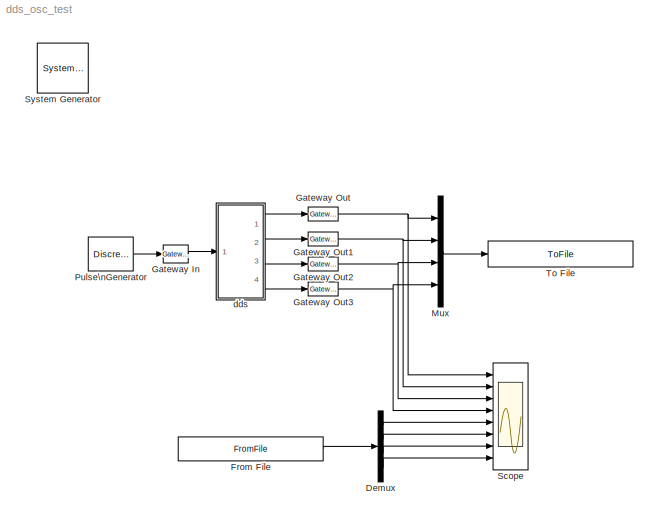
MODEL dds_osc_test
KIND model
BLOCK [Reference]  System Generator  REF=xbsIndex_r4/ System Generator
  AttributesFormatString = System\\nGenerator
  FunctionWithSeparateData = off
  Ports = []
  RTWMemSecDataConstants = Inherit from model
  RTWMemSecDataInternal = Inherit from model
  RTWMemSecDataParameters = Inherit from model
  RTWMemSecFuncExecute = Inherit from model
  RTWMemSecFuncInitTerm = Inherit from model
  ShowPortLabels = FromPortIcon
  SourceBlock = xbsIndex_r4/ System Generator
  SourceType = Xilinx System Generator Block
  SystemSampleTime = -1
  Tag = genX
  UserData = DataTag0
  UserDataPersistent = on
  block_type = sysgen
  block_version = 10.1.1
  clock_wrapper = Clock Enables
  core_generation = According to Block Masks
  dbl_ovrd = According to Block Masks
  dcm_input_clock_period = 100
  deprecated_control = off
  directory = ./netlist
  eval_field = 0
  has_advanced_control = 0
  incr_netlist = off
  infoedit = System Generator
  package = ff668
  part = xc4vsx35
  run_coregen = off
  sg_icon_stat = 51,50,-1,-1,red,beige,0,07734,right
  sg_mask_display = fprintf('','COMMENT: begin icon graphics');\npatch([0 51 51 0 ],[0 0 50 50 ],[0.93 0.92 0.86]);\npatch([12 4 16 4 12 25 29 33 47 36 25 17 29 17 25 36 47 33 29 25 12 ],[5 13 25 37 45 45 41 45 45 34 45 37 25 13 5 16 5 5 9 5 5 ],[0.6 0.2 0.25]);\nplot([0 51 51 0 0 ],[0 0 50 50 0 ]);\nfprintf('','COMMENT: end icon graphics');\nfprintf('','COMMENT: begin icon text');\nfprintf('','COMMENT: end icon text...<+5ch>
  sggui_pos = -1,-1,-1,-1
  simulink_period = 1
  speed = -10
  synthesis_tool = XST
  sysclk_period = 100
  testbench = off
  trim_vbits = Everywhere in SubSystem
  xilinxfamily = Virtex4
BLOCK [Demux] Demux
  DisplayOption = bar
  Ports = [1, 4]
BLOCK [FromFile] From File
  FileName = dds_osc_test_reference.mat
  SampleTime = 1
BLOCK [Reference] Gateway In  REF=xbsIndex_r4/Gateway In
  LOCs = {}
  Ports = [1, 1]
  SourceBlock = xbsIndex_r4/Gateway In
  SourceType = Xilinx Gateway In Block
  arith_type = Boolean
  bin_pt = 14
  block_type = gatewayin
  block_version = 11.4
  dbl_ovrd = off
  has_advanced_control = 0
  hdl_port = on
  infoedit = Gateway in block.  Converts inputs of type Simulink integer, double and fixed point to  Xilinx fixed point type.<br><br>Hardware notes:  In hardware these blocks become top level input ports.
  locs_specified = off
  n_bits = 16
  overflow = Saturate
  period = 1
  quantization = Round  (unbiased: +/- Inf)
  sg_icon_stat = 25,18,1,1,white,yellow,0,00d3666e,right,
  sg_mask_display = fprintf('','COMMENT: begin icon graphics');\npatch([0 1 1 0 ],[0 0 1 1 ],[0.95 0.93 0.65]);\npatch([0.32 0.2 0.36 0.2 0.32 0.52 0.56 0.6 0.8 0.64 0.48 0.36 0.52 0.36 0.48 0.64 0.8 0.6 0.56 0.52 0.32 ],[0.111111 0.277778 0.5 0.722222 0.888889 0.888889 0.833333 0.888889 0.888889 0.666667 0.888889 0.722222 0.5 0.277778 0.111111 0.333333 0.111111 0.111111 0.166667 0.111111 0.111111 ],[0.98 0.96 0.92])...<+285ch>
  sggui_pos = 21,71,419,481
  timing_constraint = None
  xl_area = [0,0,0,0,0,0,0]
  xl_use_area = off
BLOCK [Reference] Gateway Out  REF=xbsIndex_r4/Gateway Out
  LOCs = {}
  Ports = [1, 1]
  SourceBlock = xbsIndex_r4/Gateway Out
  SourceType = Xilinx Gateway Out Block
  block_type = gatewayout
  block_version = 10.1.1
  has_advanced_control = 0
  hdl_port = on
  infoedit = Gateway out block.  Converts Xilinx fixed point inputs into ouputs of type Simulink integer, double, or fixed point.<P><P>Hardware notes:  In hardware these blocks become top level output ports or are discarded, depending on how they are configured.  <repeated x4 — deduplicated; at blocks: Gateway Out, Gateway Out1, Gateway Out2, Gateway Out3>
  locs_specified = off
  sg_icon_stat = 30,14,1,1,white,yellow,0,cc31b7ac,right,
  sg_mask_display = fprintf('','COMMENT: begin icon graphics');\npatch([0 1 1 0 ],[0 0 1 1 ],[0.95 0.93 0.65]);\npatch([0.366667 0.3 0.4 0.3 0.366667 0.5 0.533333 0.566667 0.7 0.6 0.5 0.433333 0.533333 0.433333 0.5 0.6 0.7 0.566667 0.533333 0.5 0.366667 ],[0.142857 0.285714 0.5 0.714286 0.857143 0.857143 0.785714 0.857143 0.857143 0.642857 0.857143 0.714286 0.5 0.285714 0.142857 0.357143 0.142857 0.142857 0.214286 0....<+321ch>  <repeated x4 — deduplicated; at blocks: Gateway Out, Gateway Out1, Gateway Out2, Gateway Out3>
  sggui_pos = -1,-1,-1,-1
  timing_constraint = None
  xl_area = [0,0,0,0,0,0,0]
  xl_use_area = off
BLOCK [Reference] Gateway Out1  REF=xbsIndex_r4/Gateway Out
  LOCs = {}
  Ports = [1, 1]
  SourceBlock = xbsIndex_r4/Gateway Out
  SourceType = Xilinx Gateway Out Block
  block_type = gatewayout
  block_version = 10.1.1
  has_advanced_control = 0
  hdl_port = on
  locs_specified = off
  sg_icon_stat = 30,14,1,1,white,yellow,0,cc31b7ac,right,
  sggui_pos = -1,-1,-1,-1
  timing_constraint = None
  xl_area = [0,0,0,0,0,0,0]
  xl_use_area = off
BLOCK [Reference] Gateway Out2  REF=xbsIndex_r4/Gateway Out
  LOCs = {}
  Ports = [1, 1]
  SourceBlock = xbsIndex_r4/Gateway Out
  SourceType = Xilinx Gateway Out Block
  block_type = gatewayout
  block_version = 10.1.1
  has_advanced_control = 0
  hdl_port = on
  locs_specified = off
  sg_icon_stat = 30,14,1,1,white,yellow,0,cc31b7ac,right,
  sggui_pos = -1,-1,-1,-1
  timing_constraint = None
  xl_area = [0,0,0,0,0,0,0]
  xl_use_area = off
BLOCK [Reference] Gateway Out3  REF=xbsIndex_r4/Gateway Out
  LOCs = {}
  Ports = [1, 1]
  SourceBlock = xbsIndex_r4/Gateway Out
  SourceType = Xilinx Gateway Out Block
  block_type = gatewayout
  block_version = 10.1.1
  has_advanced_control = 0
  hdl_port = on
  locs_specified = off
  sg_icon_stat = 30,14,1,1,white,yellow,0,cc31b7ac,right,
  sggui_pos = -1,-1,-1,-1
  timing_constraint = None
  xl_area = [0,0,0,0,0,0,0]
  xl_use_area = off
BLOCK [Mux] Mux
  DisplayOption = bar
  Ports = [4, 1]
BLOCK [DiscretePulseGenerator] Pulse\nGenerator
  Period = 100
  Ports = [0, 1]
BLOCK [Scope] Scope
  DataFormat = StructureWithTime
  Floating = off
  NumInputPorts = 8
  Ports = [8]
  SampleTime = 0
  YMax = 5~5~5~5~5~5~5~5
  YMin = -5~-5~-5~-5~-5~-5~-5~-5
  ZoomMode = xonly
BLOCK [ToFile] To File
  Filename = dds_osc_test_output.mat
  MatrixName = output
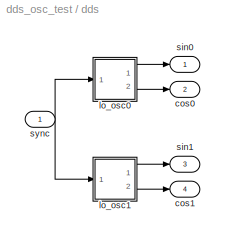
BLOCK [SubSystem] dds
  AncestorBlock = casper_library_downconverter/dds
  AttributesFormatString = lo at -1/4
  FunctionWithSeparateData = off
  MaskCallbackString = ||||
  MaskDescription = Generates P channels of sin and cos data for mixing\nwith input data in a DDC. To generate frequency \nN/M(Fc x P) (where Fc is the clock rate) \nM = \"Frequency Divisions\", N = \"Frequency\",\nParallel LOs = P
  MaskEnableString = on,on,on,on,on
  MaskHelp = eval('xlWeb(''http://casper.berkeley.edu/wiki/Dds'')')
  MaskHideContents = off
  MaskIconFrame = on
  MaskIconOpaque = on
  MaskIconRotate = none
  MaskIconUnits = autoscale
  MaskInitialization = dds_init(gcb, ...\n    'freq_div', freq_div, ...\n    'freq', freq, ...\n    'num_lo', num_lo, ...\n    'n_bits', n_bits, ...\n    'latency', latency);
  MaskPromptString = Frequency divisions (M)|Frequency (? / M*2pi)|Parallel LOs|Bit Width|Latency
  MaskSelfModifiable = on
  MaskStyleString = edit,edit,edit,edit,edit
  MaskTabNameString = ,,,,
  MaskToolTipString = on,on,on,on,on
  MaskTunableValueString = on,on,on,on,on
  MaskType = dds
  MaskValueString = 4|1|2|8|3
  MaskVarAliasString = ,,,,
  MaskVariables = freq_div=@1;freq=@2;num_lo=@3;n_bits=@4;latency=@5;
  MaskVisibilityString = on,on,on,on,on
  MinAlgLoopOccurrences = off
  Opaque = off
  Ports = [1, 4]
  PropExecContextOutsideSubsystem = off
  RTWSystemCode = Auto
  RequestExecContextInheritance = off
  UserData = DataTag1
  UserDataPersistent = on
BLOCK [Outport] dds/cos0
  IconDisplay = Port number
  OutDataType = sfix(16)
  OutScaling = 2^0
  Port = 2
BLOCK [Outport] dds/cos1
  IconDisplay = Port number
  OutDataType = sfix(16)
  OutScaling = 2^0
  Port = 4
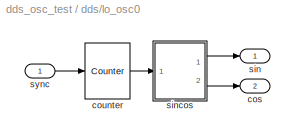
BLOCK [SubSystem] dds/lo_osc0
  AncestorBlock = casper_library_downconverter/lo_osc
  FunctionWithSeparateData = off
  MaskCallbackString = ||||
  MaskDescription = Generates -sin and cos data using a look-up \ntable.
  MaskEnableString = on,on,on,on,on
  MaskHelp = eval('xlWeb(''http://casper.berkeley.edu/wiki/Lo_osc'')')
  MaskHideContents = off
  MaskIconFrame = on
  MaskIconOpaque = on
  MaskIconRotate = none
  MaskIconUnits = autoscale
  MaskInitialization = lo_osc_init(gcb, ...\n    'n_bits', n_bits, ...\n    'counter_step', counter_step, ...\n    'counter_start', counter_start, ...\n    'counter_width', counter_width, ...\n    'latency', latency);
  MaskPromptString = Output Bitwidth|counter step|counter start value|Counter Bitwidth|Lookup latency
  MaskSelfModifiable = on
  MaskStyleString = edit,edit,edit,edit,edit
  MaskTabNameString = ,,,,
  MaskToolTipString = on,on,on,on,on
  MaskTunableValueString = on,on,on,on,on
  MaskType = lo_osc
  MaskValueString = 8|2|0|2|3
  MaskVarAliasString = ,,,,
  MaskVariables = n_bits=@1;counter_step=@2;counter_start=@3;counter_width=@4;latency=@5;
  MaskVisibilityString = on,on,on,on,on
  MinAlgLoopOccurrences = off
  Opaque = off
  Ports = [1, 2]
  PropExecContextOutsideSubsystem = off
  RTWSystemCode = Auto
  RequestExecContextInheritance = off
  UserData = DataTag2
  UserDataPersistent = on
BLOCK [Outport] dds/lo_osc0/cos
  IconDisplay = Port number
  OutDataType = sfix(16)
  OutScaling = 2^0
  Port = 2
BLOCK [Reference] dds/lo_osc0/counter  REF=xbsIndex_r4/Counter
  Ports = [1, 1]
  SourceBlock = xbsIndex_r4/Counter
  SourceType = Xilinx Counter Block
  arith_type = Unsigned
  bin_pt = 0
  block_type = counter
  block_version = 10.1.3
  cnt_by_val = counter_step*4
  cnt_to = Inf
  cnt_type = Free Running
  dbl_ovrd = off
  en = off
  explicit_period = on
  has_advanced_control = 0
  implementation = Fabric
  infoedit = Hardware notes: Free running counters are the least expensive in hardware.  A count limited counter is implemented by combining a counter with a comparator.
  load_pin = off
  n_bits = counter_width+2
  operation = Up
  period = 1
  rst = on
  sg_icon_stat = 45,56,1,1,white,blue,0,c59595e6,right,
  sg_mask_display = fprintf('','COMMENT: begin icon graphics');\npatch([0 1 1 0 ],[0 0 1 1 ],[0.77 0.82 0.91]);\npatch([0.222222 0.0666667 0.311111 0.0666667 0.222222 0.488889 0.555556 0.622222 0.911111 0.688889 0.466667 0.311111 0.555556 0.311111 0.466667 0.688889 0.911111 0.622222 0.555556 0.488889 0.222222 ],[0.178571 0.303571 0.5 0.696429 0.821429 0.821429 0.767857 0.821429 0.821429 0.642857 0.821429 0.696429 0.5...<+343ch>
  sggui_pos = 20,20,348,619
  start_count = counter_start*4
  use_behavioral_HDL = off
  use_rpm = off
  xl_area = [0,0,0,0,0,0,0]
  xl_use_area = off
BLOCK [Outport] dds/lo_osc0/sin
  IconDisplay = Port number
  OutDataType = sfix(16)
  OutScaling = 2^0
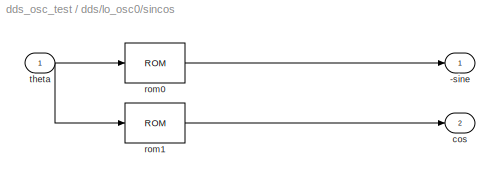
BLOCK [SubSystem] dds/lo_osc0/sincos
  AncestorBlock = casper_library_downconverter/sincos
  FunctionWithSeparateData = off
  MaskCallbackString = |||||||
  MaskEnableString = on,on,on,on,on,on,on,on
  MaskHideContents = off
  MaskIconFrame = on
  MaskIconOpaque = on
  MaskIconRotate = none
  MaskIconUnits = autoscale
  MaskInitialization = sincos_init(gcb, ...\n    'func', func, ...\n    'neg_sin', neg_sin, ...\n    'neg_cos', neg_cos, ...\n    'symmetric', symmetric, ...\n    'handle_sync', handle_sync, ...\n    'depth_bits', depth_bits, ...\n    'bit_width', bit_width, ...\n    'bram_latency', bram_latency);
  MaskPromptString = Function|Negative sine|Negative cosine|Symmetric output|Handle sync|Lookup table depth (2^?)|Output bit width|BRAM latency
  MaskStyleString = popup(cosine|sine|sine and cosine),checkbox,checkbox,checkbox,checkbox,edit,edit,edit
  MaskTabNameString = ,,,,,,,
  MaskToolTipString = on,on,on,on,on,on,on,on
  MaskTunableValueString = on,on,on,on,on,on,on,on
  MaskType = sincos
  MaskValueString = sine and cosine|on|off|off|off|4|8|3
  MaskVarAliasString = ,,,,,,,
  MaskVariables = func=&1;neg_sin=&2;neg_cos=&3;symmetric=&4;handle_sync=&5;depth_bits=@6;bit_width=@7;bram_latency=@8;
  MaskVisibilityString = on,on,on,on,on,on,on,on
  MinAlgLoopOccurrences = off
  Opaque = off
  Ports = [1, 2]
  PropExecContextOutsideSubsystem = off
  RTWSystemCode = Auto
  RequestExecContextInheritance = off
  UserData = DataTag3
  UserDataPersistent = on
BLOCK [Outport] dds/lo_osc0/sincos/-sine
  IconDisplay = Port number
BLOCK [Outport] dds/lo_osc0/sincos/cos
  IconDisplay = Port number
  Port = 2
BLOCK [Reference] dds/lo_osc0/sincos/rom0  REF=xbsIndex_r4/ROM
  Ports = [1, 1]
  SourceBlock = xbsIndex_r4/ROM
  SourceType = Xilinx Single Port Read-Only Memory Block
  arith_type = Signed  (2's comp)
  bin_pt = bit_width-1
  block_type = sprom
  block_version = 10.1.3
  dbl_ovrd = off
  depth = 2^depth_bits
  distributed_mem = Block RAM
  en = off
  has_advanced_control = 0
  initVector = -sin(2*pi*(0:(2^depth_bits-1))/(2^depth_bits))
  init_reg = 0
  latency = bram_latency
  n_bits = bit_width
  optimize = Area
  rst = off
  sg_icon_stat = 60,40,1,1,white,blue,0,af4d5ca7,right,
  sg_mask_display = fprintf('','COMMENT: begin icon graphics');\npatch([0 1 1 0 ],[0 0 1 1 ],[0.77 0.82 0.91]);\npatch([0.333333 0.216667 0.366667 0.216667 0.333333 0.516667 0.566667 0.616667 0.8 0.65 0.5 0.4 0.566667 0.4 0.5 0.65 0.8 0.616667 0.566667 0.516667 0.333333 ],[0.1 0.275 0.5 0.725 0.9 0.9 0.825 0.9 0.9 0.675 0.9 0.75 0.5 0.25 0.1 0.325 0.1 0.1 0.175 0.1 0.1 ],[0.98 0.96 0.92]);\nplot([0 1 1 0 0 ],[0 0 1 1...<+224ch>  <repeated x4 — deduplicated; at blocks: rom0, rom1>
  sggui_pos = 20,20,348,308
  use_rpm = on
  xl_area = [0,0,0,0,0,0,0]
  xl_use_area = off
BLOCK [Reference] dds/lo_osc0/sincos/rom1  REF=xbsIndex_r4/ROM
  Ports = [1, 1]
  SourceBlock = xbsIndex_r4/ROM
  SourceType = Xilinx Single Port Read-Only Memory Block
  arith_type = Signed  (2's comp)
  bin_pt = bit_width-1
  block_type = sprom
  block_version = 10.1.3
  dbl_ovrd = off
  depth = 2^depth_bits
  distributed_mem = Block RAM
  en = off
  has_advanced_control = 0
  initVector = cos(2*pi*(0:(2^depth_bits-1))/(2^depth_bits))
  init_reg = 0
  latency = bram_latency
  n_bits = bit_width
  optimize = Area
  rst = off
  sg_icon_stat = 60,40,1,1,white,blue,0,af4d5ca7,right,
  sggui_pos = 20,20,348,308
  use_rpm = on
  xl_area = [0,0,0,0,0,0,0]
  xl_use_area = off
BLOCK [Inport] dds/lo_osc0/sincos/theta
  IconDisplay = Port number
BLOCK [Inport] dds/lo_osc0/sync
  IconDisplay = Port number
  OutDataType = sfix(16)
  OutScaling = 2^0
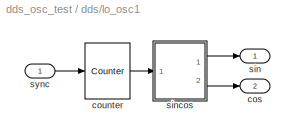
BLOCK [SubSystem] dds/lo_osc1
  AncestorBlock = casper_library_downconverter/lo_osc
  FunctionWithSeparateData = off
  MaskCallbackString = ||||
  MaskDescription = Generates -sin and cos data using a look-up \ntable.
  MaskEnableString = on,on,on,on,on
  MaskHelp = eval('xlWeb(''http://casper.berkeley.edu/wiki/Lo_osc'')')
  MaskHideContents = off
  MaskIconFrame = on
  MaskIconOpaque = on
  MaskIconRotate = none
  MaskIconUnits = autoscale
  MaskInitialization = lo_osc_init(gcb, ...\n    'n_bits', n_bits, ...\n    'counter_step', counter_step, ...\n    'counter_start', counter_start, ...\n    'counter_width', counter_width, ...\n    'latency', latency);
  MaskPromptString = Output Bitwidth|counter step|counter start value|Counter Bitwidth|Lookup latency
  MaskSelfModifiable = on
  MaskStyleString = edit,edit,edit,edit,edit
  MaskTabNameString = ,,,,
  MaskToolTipString = on,on,on,on,on
  MaskTunableValueString = on,on,on,on,on
  MaskType = lo_osc
  MaskValueString = 8|2|1|2|3
  MaskVarAliasString = ,,,,
  MaskVariables = n_bits=@1;counter_step=@2;counter_start=@3;counter_width=@4;latency=@5;
  MaskVisibilityString = on,on,on,on,on
  MinAlgLoopOccurrences = off
  Opaque = off
  Ports = [1, 2]
  PropExecContextOutsideSubsystem = off
  RTWSystemCode = Auto
  RequestExecContextInheritance = off
  UserData = DataTag4
  UserDataPersistent = on
BLOCK [Outport] dds/lo_osc1/cos
  IconDisplay = Port number
  OutDataType = sfix(16)
  OutScaling = 2^0
  Port = 2
BLOCK [Reference] dds/lo_osc1/counter  REF=xbsIndex_r4/Counter
  Ports = [1, 1]
  SourceBlock = xbsIndex_r4/Counter
  SourceType = Xilinx Counter Block
  arith_type = Unsigned
  bin_pt = 0
  block_type = counter
  block_version = 10.1.3
  cnt_by_val = counter_step*4
  cnt_to = Inf
  cnt_type = Free Running
  dbl_ovrd = off
  en = off
  explicit_period = on
  has_advanced_control = 0
  implementation = Fabric
  infoedit = Hardware notes: Free running counters are the least expensive in hardware.  A count limited counter is implemented by combining a counter with a comparator.
  load_pin = off
  n_bits = counter_width+2
  operation = Up
  period = 1
  rst = on
  sg_icon_stat = 45,56,1,1,white,blue,0,c59595e6,right,
  sg_mask_display = fprintf('','COMMENT: begin icon graphics');\npatch([0 1 1 0 ],[0 0 1 1 ],[0.77 0.82 0.91]);\npatch([0.222222 0.0666667 0.311111 0.0666667 0.222222 0.488889 0.555556 0.622222 0.911111 0.688889 0.466667 0.311111 0.555556 0.311111 0.466667 0.688889 0.911111 0.622222 0.555556 0.488889 0.222222 ],[0.178571 0.303571 0.5 0.696429 0.821429 0.821429 0.767857 0.821429 0.821429 0.642857 0.821429 0.696429 0.5...<+343ch>
  sggui_pos = 20,20,348,619
  start_count = counter_start*4
  use_behavioral_HDL = off
  use_rpm = off
  xl_area = [0,0,0,0,0,0,0]
  xl_use_area = off
BLOCK [Outport] dds/lo_osc1/sin
  IconDisplay = Port number
  OutDataType = sfix(16)
  OutScaling = 2^0
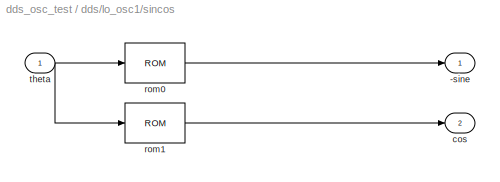
BLOCK [SubSystem] dds/lo_osc1/sincos
  AncestorBlock = casper_library_downconverter/sincos
  FunctionWithSeparateData = off
  MaskCallbackString = |||||||
  MaskEnableString = on,on,on,on,on,on,on,on
  MaskHideContents = off
  MaskIconFrame = on
  MaskIconOpaque = on
  MaskIconRotate = none
  MaskIconUnits = autoscale
  MaskInitialization = sincos_init(gcb, ...\n    'func', func, ...\n    'neg_sin', neg_sin, ...\n    'neg_cos', neg_cos, ...\n    'symmetric', symmetric, ...\n    'handle_sync', handle_sync, ...\n    'depth_bits', depth_bits, ...\n    'bit_width', bit_width, ...\n    'bram_latency', bram_latency);
  MaskPromptString = Function|Negative sine|Negative cosine|Symmetric output|Handle sync|Lookup table depth (2^?)|Output bit width|BRAM latency
  MaskStyleString = popup(cosine|sine|sine and cosine),checkbox,checkbox,checkbox,checkbox,edit,edit,edit
  MaskTabNameString = ,,,,,,,
  MaskToolTipString = on,on,on,on,on,on,on,on
  MaskTunableValueString = on,on,on,on,on,on,on,on
  MaskType = sincos
  MaskValueString = sine and cosine|on|off|off|off|4|8|3
  MaskVarAliasString = ,,,,,,,
  MaskVariables = func=&1;neg_sin=&2;neg_cos=&3;symmetric=&4;handle_sync=&5;depth_bits=@6;bit_width=@7;bram_latency=@8;
  MaskVisibilityString = on,on,on,on,on,on,on,on
  MinAlgLoopOccurrences = off
  Opaque = off
  Ports = [1, 2]
  PropExecContextOutsideSubsystem = off
  RTWSystemCode = Auto
  RequestExecContextInheritance = off
  UserData = DataTag5
  UserDataPersistent = on
BLOCK [Outport] dds/lo_osc1/sincos/-sine
  IconDisplay = Port number
BLOCK [Outport] dds/lo_osc1/sincos/cos
  IconDisplay = Port number
  Port = 2
BLOCK [Reference] dds/lo_osc1/sincos/rom0  REF=xbsIndex_r4/ROM
  Ports = [1, 1]
  SourceBlock = xbsIndex_r4/ROM
  SourceType = Xilinx Single Port Read-Only Memory Block
  arith_type = Signed  (2's comp)
  bin_pt = bit_width-1
  block_type = sprom
  block_version = 10.1.3
  dbl_ovrd = off
  depth = 2^depth_bits
  distributed_mem = Block RAM
  en = off
  has_advanced_control = 0
  initVector = -sin(2*pi*(0:(2^depth_bits-1))/(2^depth_bits))
  init_reg = 0
  latency = bram_latency
  n_bits = bit_width
  optimize = Area
  rst = off
  sg_icon_stat = 60,40,1,1,white,blue,0,af4d5ca7,right,
  sggui_pos = 20,20,348,308
  use_rpm = on
  xl_area = [0,0,0,0,0,0,0]
  xl_use_area = off
BLOCK [Reference] dds/lo_osc1/sincos/rom1  REF=xbsIndex_r4/ROM
  Ports = [1, 1]
  SourceBlock = xbsIndex_r4/ROM
  SourceType = Xilinx Single Port Read-Only Memory Block
  arith_type = Signed  (2's comp)
  bin_pt = bit_width-1
  block_type = sprom
  block_version = 10.1.3
  dbl_ovrd = off
  depth = 2^depth_bits
  distributed_mem = Block RAM
  en = off
  has_advanced_control = 0
  initVector = cos(2*pi*(0:(2^depth_bits-1))/(2^depth_bits))
  init_reg = 0
  latency = bram_latency
  n_bits = bit_width
  optimize = Area
  rst = off
  sg_icon_stat = 60,40,1,1,white,blue,0,af4d5ca7,right,
  sggui_pos = 20,20,348,308
  use_rpm = on
  xl_area = [0,0,0,0,0,0,0]
  xl_use_area = off
BLOCK [Inport] dds/lo_osc1/sincos/theta
  IconDisplay = Port number
BLOCK [Inport] dds/lo_osc1/sync
  IconDisplay = Port number
  OutDataType = sfix(16)
  OutScaling = 2^0
BLOCK [Outport] dds/sin0
  IconDisplay = Port number
  OutDataType = sfix(16)
  OutScaling = 2^0
BLOCK [Outport] dds/sin1
  IconDisplay = Port number
  OutDataType = sfix(16)
  OutScaling = 2^0
  Port = 3
BLOCK [Inport] dds/sync
  IconDisplay = Port number
LINE Demux:1 -> Scope:5
LINE Demux:2 -> Scope:6
LINE Demux:3 -> Scope:7
LINE Demux:4 -> Scope:8
LINE From File:1 -> Demux:1
LINE Gateway In:1 -> dds:1
NET Gateway Out1:1 -> Mux:2, Scope:2
NET Gateway Out2:1 -> Mux:3, Scope:3
NET Gateway Out3:1 -> Mux:4, Scope:4
NET Gateway Out:1 -> Mux:1, Scope:1
LINE Mux:1 -> To File:1
LINE Pulse\nGenerator:1 -> Gateway In:1
LINE dds/lo_osc0/counter:1 -> dds/lo_osc0/sincos:1
LINE dds/lo_osc0/sincos/rom0:1 -> dds/lo_osc0/sincos/-sine:1
LINE dds/lo_osc0/sincos/rom1:1 -> dds/lo_osc0/sincos/cos:1
NET dds/lo_osc0/sincos/theta:1 -> dds/lo_osc0/sincos/rom0:1, dds/lo_osc0/sincos/rom1:1
LINE dds/lo_osc0/sincos:1 -> dds/lo_osc0/sin:1
LINE dds/lo_osc0/sincos:2 -> dds/lo_osc0/cos:1
LINE dds/lo_osc0/sync:1 -> dds/lo_osc0/counter:1
LINE dds/lo_osc0:1 -> dds/sin0:1
LINE dds/lo_osc0:2 -> dds/cos0:1
LINE dds/lo_osc1/counter:1 -> dds/lo_osc1/sincos:1
LINE dds/lo_osc1/sincos/rom0:1 -> dds/lo_osc1/sincos/-sine:1
LINE dds/lo_osc1/sincos/rom1:1 -> dds/lo_osc1/sincos/cos:1
NET dds/lo_osc1/sincos/theta:1 -> dds/lo_osc1/sincos/rom0:1, dds/lo_osc1/sincos/rom1:1
LINE dds/lo_osc1/sincos:1 -> dds/lo_osc1/sin:1
LINE dds/lo_osc1/sincos:2 -> dds/lo_osc1/cos:1
LINE dds/lo_osc1/sync:1 -> dds/lo_osc1/counter:1
LINE dds/lo_osc1:1 -> dds/sin1:1
LINE dds/lo_osc1:2 -> dds/cos1:1
NET dds/sync:1 -> dds/lo_osc0:1, dds/lo_osc1:1
LINE dds:1 -> Gateway Out:1
LINE dds:2 -> Gateway Out1:1
LINE dds:3 -> Gateway Out2:1
LINE dds:4 -> Gateway Out3:1
note: NET lines group one-source signal fan-out (src -> all destinations, sorted); 1:1 wires keep LINE
